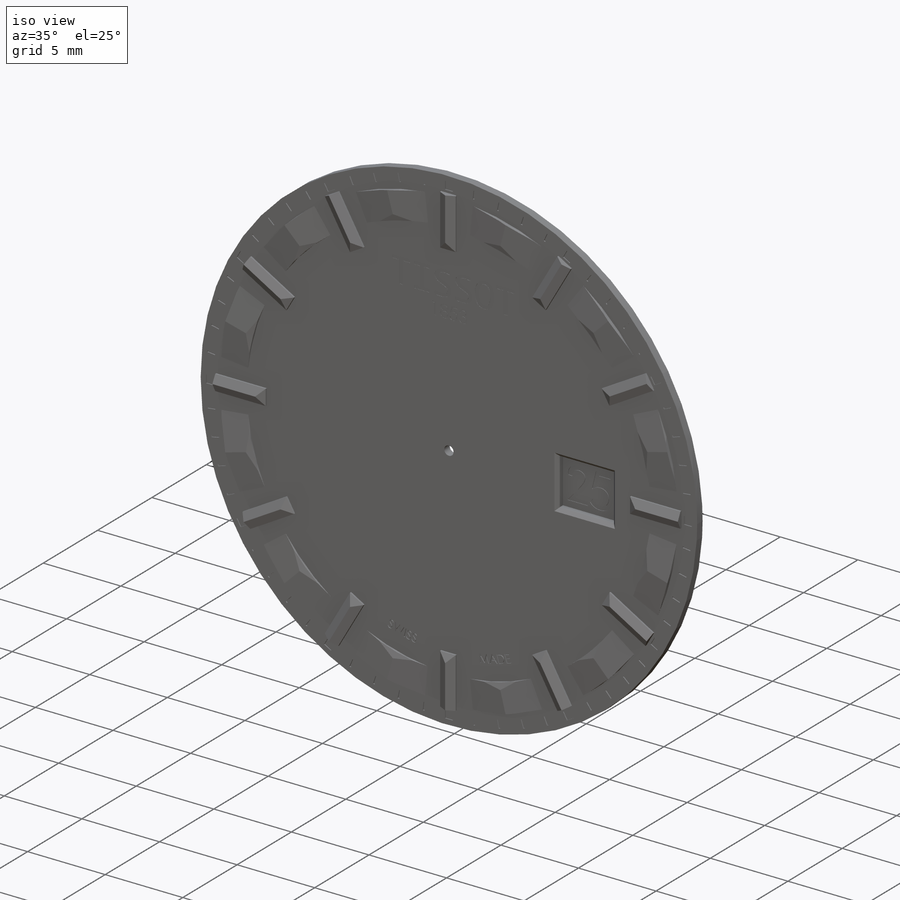
[diagram: iso view]
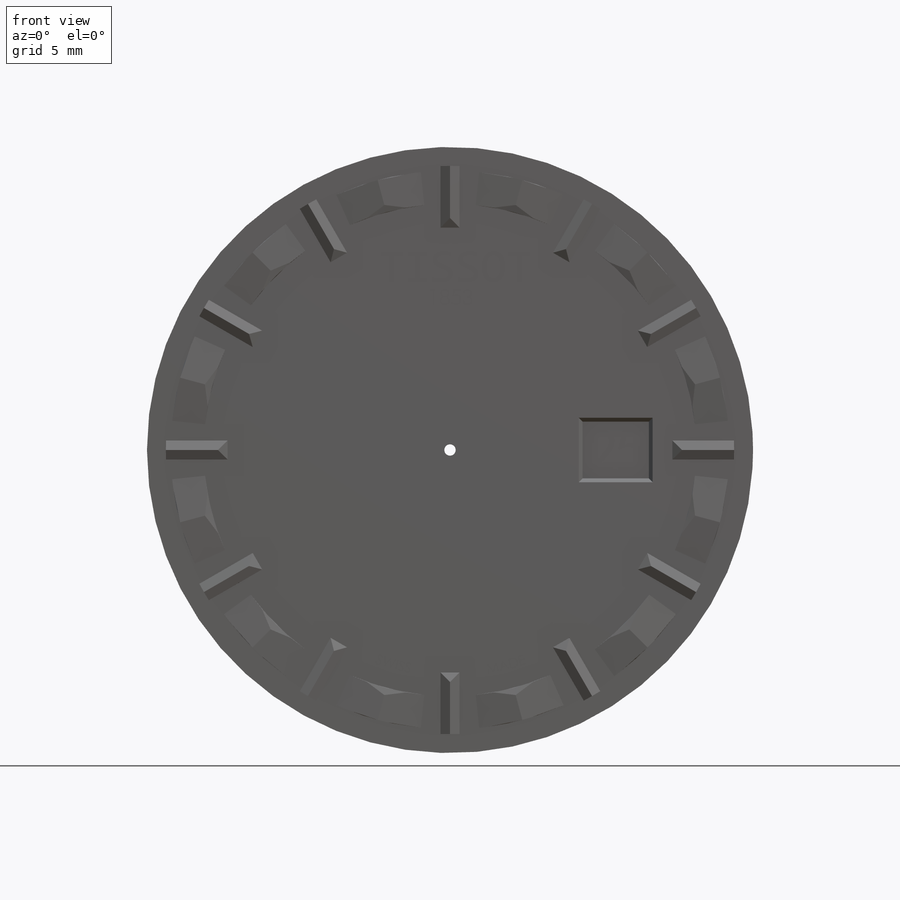
[diagram: front view]
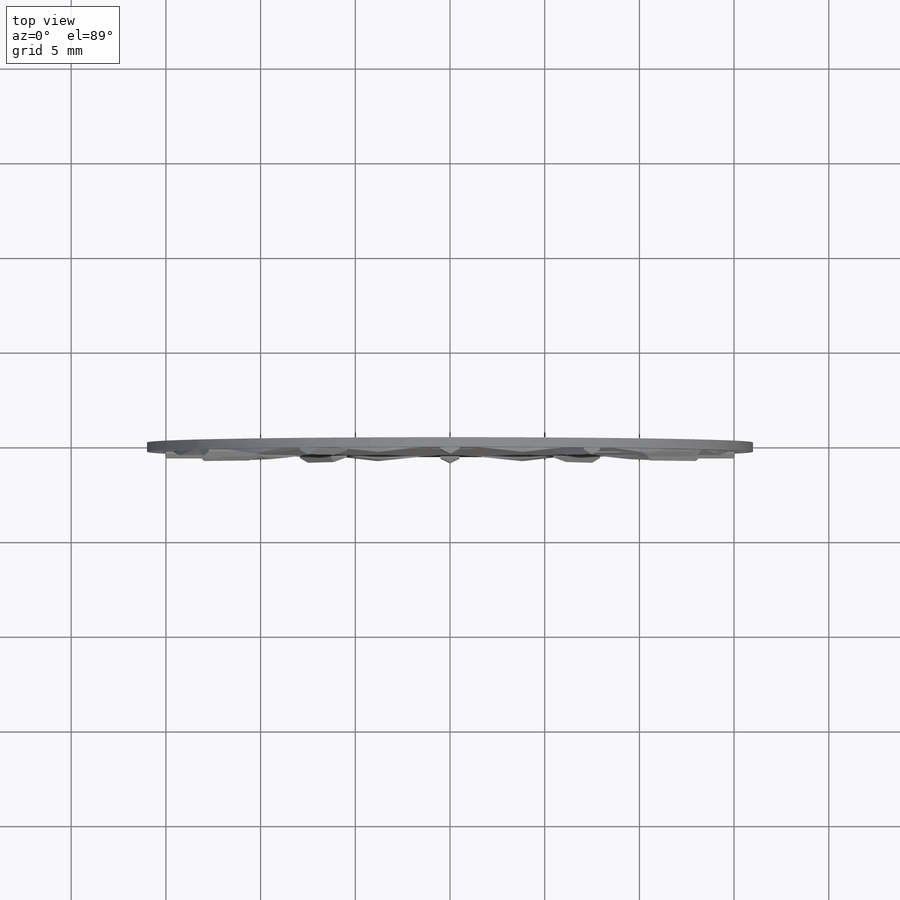
[diagram: top view]
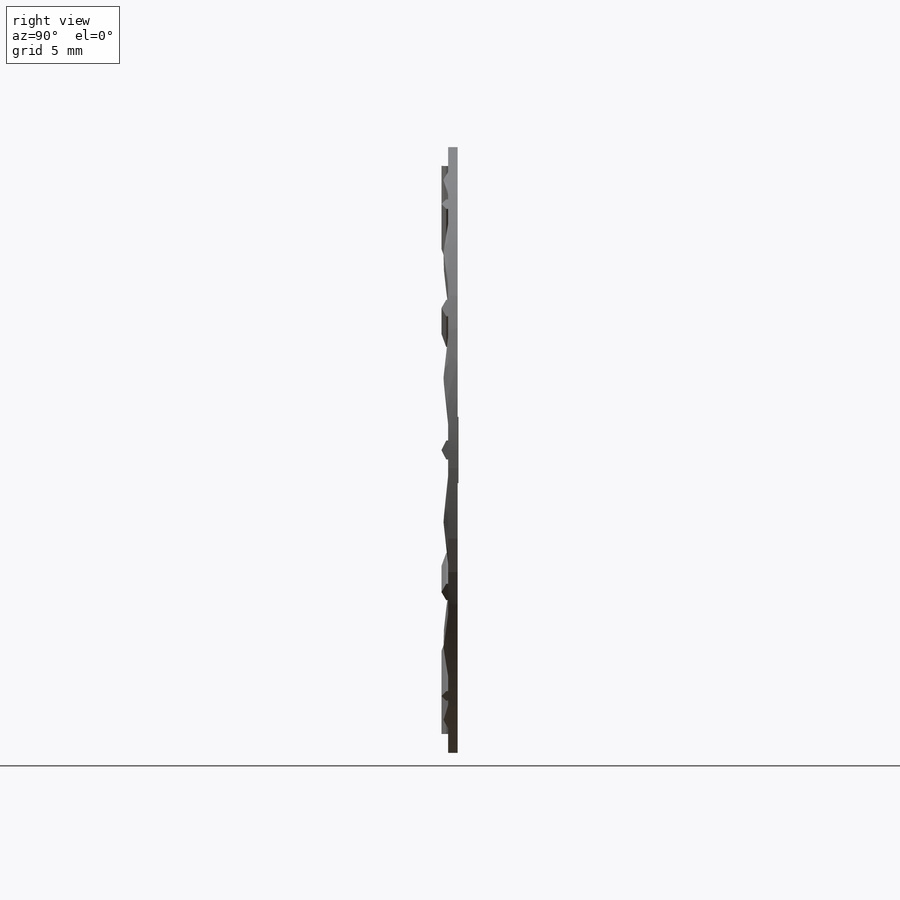
[diagram: right view]
SOLIDWORKS PART (.sldprt)
format: sldprt  version: not decoded by parser v0  size: 1,485,312 bytes
history: native  units: mm
features: sketch x14, cut_extrude x8, extrude x5, chamfer x4, pattern_circular x2, material x1 (+11 scaffold rows collapsed)
feature tree (45):
  scaffold x11  (default folders/planes/origin — collapsed)
  material  "Material <not specified>"
  sketch  "Sketch1"  dims[D1=32.0mm]
  extrude  "Boss-Extrude1"  Depth=0.5mm
  sketch  "Sketch2"  dims[D1=30.0mm D2=23.5mm D3=26.0mm D4=29.0mm]
  sketch  "Sketch3"  dims[c1.D2=0.5mm c1.D3=0.5mm c1.D4=0.5mm c1.D5=0.5mm c1.D6=0.5mm c1.D7=0.5mm c1.D1=0.5mm c2.D2=0.5mm]
  extrude  "Boss-Extrude2"  Depth=0.35mm
  chamfer  "Chamfer1"  Distance=0.25mm Angle=63.3deg
  sketch  "Sketch4"  dims[D2=29.5mm D1=60.0]
  extrude  "Boss-Extrude3"  Depth=0.25mm
  chamfer  "Chamfer2"  Distance=0.15mm Angle=73deg
  sketch  "Sketch5"  dims[D1=3.5mm D2=3.0mm D3=7.0mm D4=1.5mm]
  cut_extrude  "Cut-Extrude1"  Depth=10.25mm
  chamfer  "Chamfer3"  Distance=0.2mm Angle=45deg
  sketch  "Sketch6"  dims[D1=0.6mm]
  cut_extrude  "Cut-Extrude2"  Depth=10.25mm
  sketch  "Sketch7"
  cut_extrude  "Cut-Extrude3"  Depth=0.01mm
  sketch  "Sketch9"
  cut_extrude  "Cut-Extrude4"  Depth=0.01mm
  sketch  "Sketch10"  dims[D1=0.25mm D2=0.25mm D3=0.25mm D4=0.25mm]
  extrude  "Boss-Extrude4"  Depth=0.05mm
  sketch  "Sketch11"
  cut_extrude  "Cut-Extrude5"  Depth=0.03mm
  sketch  "Sketch13"
  cut_extrude  "Cut-Extrude6"  Depth=0.05mm
  chamfer  "Chamfer4"  Distance=0.25mm Angle=84deg
  sketch  "Sketch14"  dims[D1=0.5mm D2=0.25mm D3=0.5mm D4=15.15mm]
  cut_extrude  "Cut-Extrude7"  Depth=0.05mm
  pattern_circular  "CirPattern1"  Count=12 Angle=360deg
  sketch  "Sketch15"  dims[D1=0.05mm D2=0.05mm]
  cut_extrude  "Cut-Extrude8"  Depth=0.06mm
  pattern_circular  "CirPattern2"  Count=60 Angle=360deg
  sketch  "Sketch16"
  extrude  "Boss-Extrude5"  Depth=0.01mm
decode coverage: 28 of 33 modeling features carry decoded parameters
note: suppression state not decoded; provenance and decode notes live in map.json
